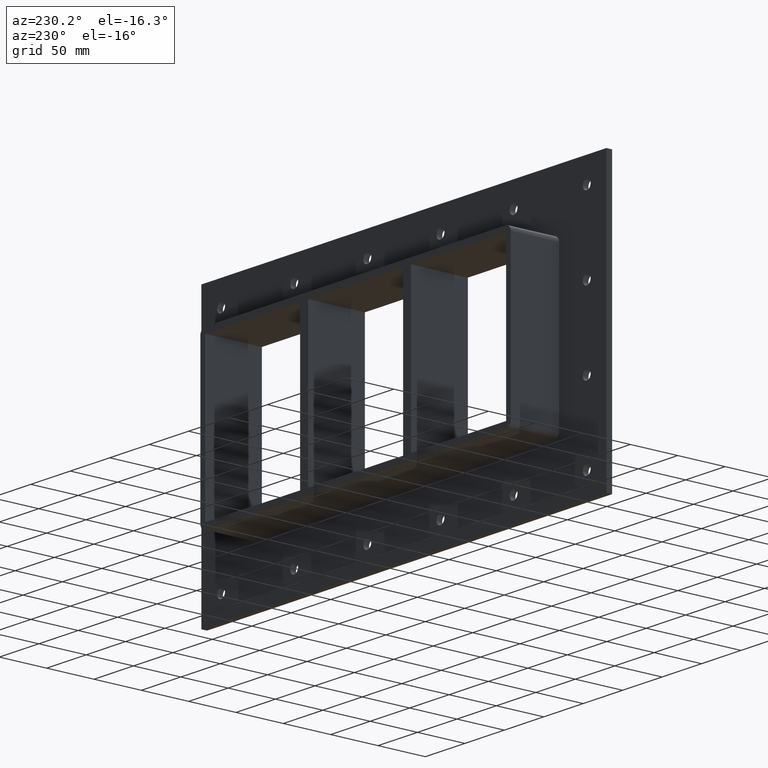
[diagram: clean part render]
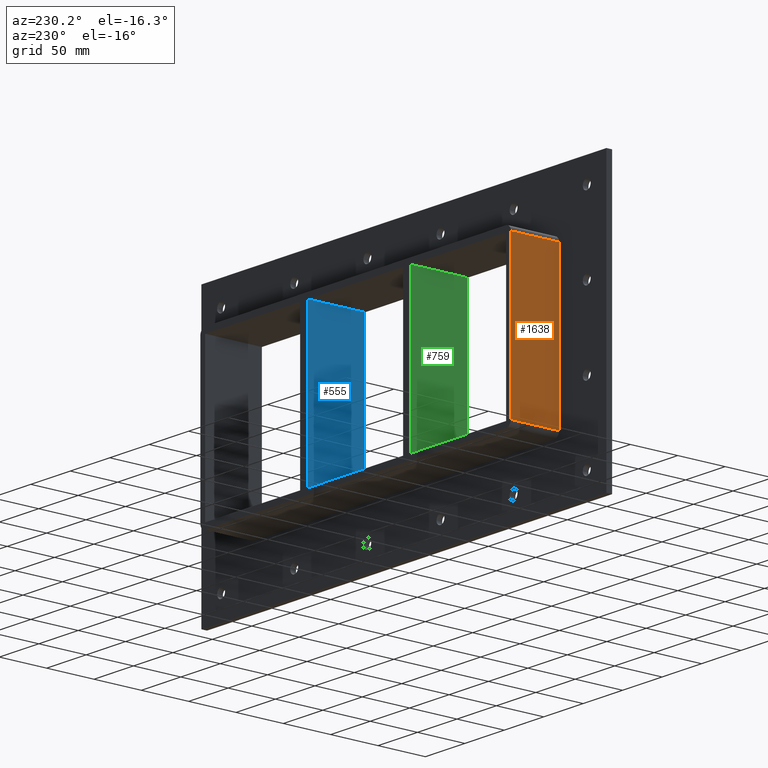
[diagram: same view with three faces highlighted in distinct colors, each labeled with its STEP entity id]
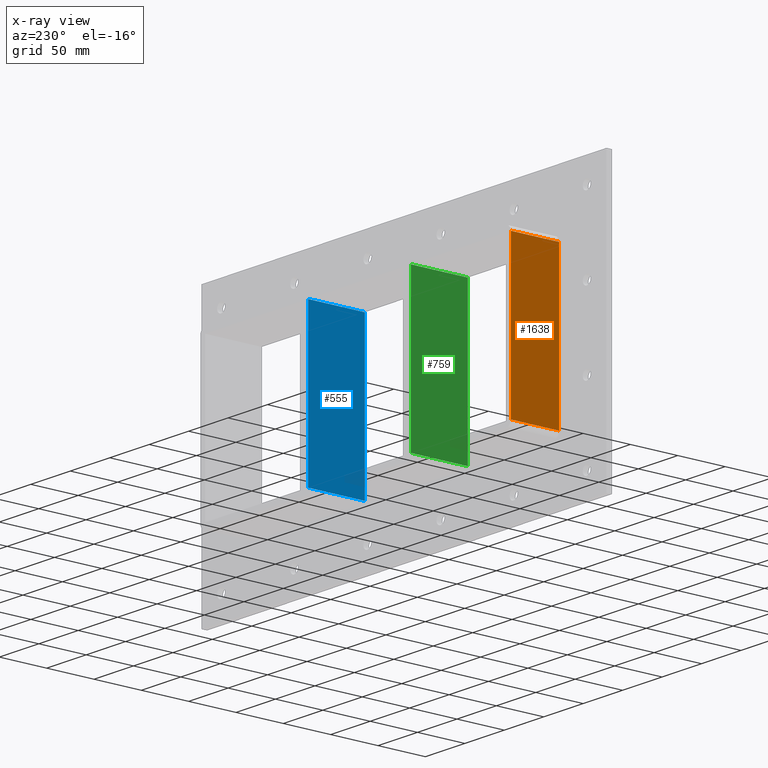
[diagram: x-ray of the same camera — body ghosted, the three highlighted faces saturated]
A machine part, auxiliary view with three faces highlighted in distinct colors.
The next image is the same camera in x-ray (body ghosted, the three faces saturated) — at least one of them is partly hidden behind the body in this view.
Their STEP definitions:

[orange] entity #1638 — the highlighted planar face has unit normal (-1, 0, 0).
#933=CARTESIAN_POINT('',(-196.75000000000006,6.000000000000001,-79.750000000000028));
#934=VERTEX_POINT('',#933);
#984=CARTESIAN_POINT('',(-196.75000000000006,6.000000000000001,79.750000000000028));
#985=VERTEX_POINT('',#984);
#993=CARTESIAN_POINT('',(-196.75000000000006,6.000000000000001,-79.750000000000028));
#994=DIRECTION('',(0.0,0.0,1.0));
#995=VECTOR('',#994,159.50000000000006);
#996=LINE('',#993,#995);
#997=EDGE_CURVE('',#934,#985,#996,.T.);
#1596=CARTESIAN_POINT('',(-196.75000000000006,57.0,-79.750000000000028));
#1597=VERTEX_POINT('',#1596);
#1598=CARTESIAN_POINT('',(-196.75000000000006,6.000000000000001,-79.750000000000028));
#1599=DIRECTION('',(0.0,1.0,0.0));
#1600=VECTOR('',#1599,51.0);
#1601=LINE('',#1598,#1600);
#1602=EDGE_CURVE('',#934,#1597,#1601,.T.);
#1615=CARTESIAN_POINT('',(-196.75000000000006,0.0,-85.750000000000028));
#1616=DIRECTION('',(-1.0,0.0,0.0));
#1617=DIRECTION('',(0.0,0.0,1.0));
#1618=AXIS2_PLACEMENT_3D('',#1615,#1616,#1617);
#1619=PLANE('',#1618);
#1620=ORIENTED_EDGE('',*,*,#997,.T.);
#1621=CARTESIAN_POINT('',(-196.75000000000006,57.0,79.750000000000014));
#1622=VERTEX_POINT('',#1621);
#1623=CARTESIAN_POINT('',(-196.75000000000006,57.0,79.750000000000028));
#1624=DIRECTION('',(0.0,-1.0,0.0));
#1625=VECTOR('',#1624,51.0);
#1626=LINE('',#1623,#1625);
#1627=EDGE_CURVE('',#1622,#985,#1626,.T.);
#1628=ORIENTED_EDGE('',*,*,#1627,.F.);
#1629=CARTESIAN_POINT('',(-196.75000000000006,57.0,-79.750000000000028));
#1630=DIRECTION('',(0.0,0.0,1.0));
#1631=VECTOR('',#1630,159.50000000000006);
#1632=LINE('',#1629,#1631);
#1633=EDGE_CURVE('',#1597,#1622,#1632,.T.);
#1634=ORIENTED_EDGE('',*,*,#1633,.F.);
#1635=ORIENTED_EDGE('',*,*,#1602,.F.);
#1636=EDGE_LOOP('',(#1620,#1628,#1634,#1635));
#1637=FACE_OUTER_BOUND('',#1636,.T.);
#1638=ADVANCED_FACE('',(#1637),#1619,.T.);

[blue] entity #555 — the highlighted planar face has unit normal (-1, 0, 0).
#516=CARTESIAN_POINT('',(60.2499999999986,-3.0,-79.750000000000014));
#517=DIRECTION('',(-1.0,0.0,0.0));
#518=DIRECTION('',(0.0,0.0,1.0));
#519=AXIS2_PLACEMENT_3D('',#516,#517,#518);
#520=PLANE('',#519);
#521=CARTESIAN_POINT('',(60.2499999999986,-3.0,-79.750000000000014));
#522=VERTEX_POINT('',#521);
#523=CARTESIAN_POINT('',(60.249999999998565,-3.0,79.750000000000014));
#524=VERTEX_POINT('',#523);
#525=CARTESIAN_POINT('',(60.2499999999986,-3.0,-79.750000000000014));
#526=DIRECTION('',(0.0,0.0,1.0));
#527=VECTOR('',#526,159.50000000000003);
#528=LINE('',#525,#527);
#529=EDGE_CURVE('',#522,#524,#528,.T.);
#530=ORIENTED_EDGE('',*,*,#529,.T.);
#531=CARTESIAN_POINT('',(60.249999999998565,57.0,79.750000000000014));
#532=VERTEX_POINT('',#531);
#533=CARTESIAN_POINT('',(60.249999999998565,57.000000000000007,79.750000000000014));
#534=DIRECTION('',(0.0,-1.0,0.0));
#535=VECTOR('',#534,60.000000000000007);
#536=LINE('',#533,#535);
#537=EDGE_CURVE('',#532,#524,#536,.T.);
#538=ORIENTED_EDGE('',*,*,#537,.F.);
#539=CARTESIAN_POINT('',(60.2499999999986,57.0,-79.750000000000014));
#540=VERTEX_POINT('',#539);
#541=CARTESIAN_POINT('',(60.2499999999986,57.0,-79.750000000000014));
#542=DIRECTION('',(0.0,0.0,1.0));
#543=VECTOR('',#542,159.50000000000003);
#544=LINE('',#541,#543);
#545=EDGE_CURVE('',#540,#532,#544,.T.);
#546=ORIENTED_EDGE('',*,*,#545,.F.);
#547=CARTESIAN_POINT('',(60.2499999999986,-3.0,-79.750000000000014));
#548=DIRECTION('',(0.0,1.0,0.0));
#549=VECTOR('',#548,60.000000000000007);
#550=LINE('',#547,#549);
#551=EDGE_CURVE('',#522,#540,#550,.T.);
#552=ORIENTED_EDGE('',*,*,#551,.F.);
#553=EDGE_LOOP('',(#530,#538,#546,#552));
#554=FACE_OUTER_BOUND('',#553,.T.);
#555=ADVANCED_FACE('',(#554),#520,.T.);

[green] entity #759 — the highlighted planar face has unit normal (-1, 0, 0).
#720=CARTESIAN_POINT('',(-70.250000000001407,-3.0,-79.750000000000014));
#721=DIRECTION('',(-1.0,0.0,0.0));
#722=DIRECTION('',(0.0,0.0,1.0));
#723=AXIS2_PLACEMENT_3D('',#720,#721,#722);
#724=PLANE('',#723);
#725=CARTESIAN_POINT('',(-70.250000000001407,-3.0,-79.750000000000014));
#726=VERTEX_POINT('',#725);
#727=CARTESIAN_POINT('',(-70.25000000000145,-3.0,79.750000000000014));
#728=VERTEX_POINT('',#727);
#729=CARTESIAN_POINT('',(-70.250000000001407,-3.0,-79.750000000000014));
#730=DIRECTION('',(0.0,0.0,1.0));
#731=VECTOR('',#730,159.50000000000003);
#732=LINE('',#729,#731);
#733=EDGE_CURVE('',#726,#728,#732,.T.);
#734=ORIENTED_EDGE('',*,*,#733,.T.);
#735=CARTESIAN_POINT('',(-70.25000000000145,57.0,79.750000000000014));
#736=VERTEX_POINT('',#735);
#737=CARTESIAN_POINT('',(-70.25000000000145,57.000000000000007,79.750000000000014));
#738=DIRECTION('',(0.0,-1.0,0.0));
#739=VECTOR('',#738,60.000000000000007);
#740=LINE('',#737,#739);
#741=EDGE_CURVE('',#736,#728,#740,.T.);
#742=ORIENTED_EDGE('',*,*,#741,.F.);
#743=CARTESIAN_POINT('',(-70.250000000001407,57.0,-79.750000000000014));
#744=VERTEX_POINT('',#743);
#745=CARTESIAN_POINT('',(-70.250000000001407,57.0,-79.750000000000014));
#746=DIRECTION('',(0.0,0.0,1.0));
#747=VECTOR('',#746,159.50000000000003);
#748=LINE('',#745,#747);
#749=EDGE_CURVE('',#744,#736,#748,.T.);
#750=ORIENTED_EDGE('',*,*,#749,.F.);
#751=CARTESIAN_POINT('',(-70.250000000001407,-3.0,-79.750000000000014));
#752=DIRECTION('',(0.0,1.0,0.0));
#753=VECTOR('',#752,60.000000000000007);
#754=LINE('',#751,#753);
#755=EDGE_CURVE('',#726,#744,#754,.T.);
#756=ORIENTED_EDGE('',*,*,#755,.F.);
#757=EDGE_LOOP('',(#734,#742,#750,#756));
#758=FACE_OUTER_BOUND('',#757,.T.);
#759=ADVANCED_FACE('',(#758),#724,.T.);